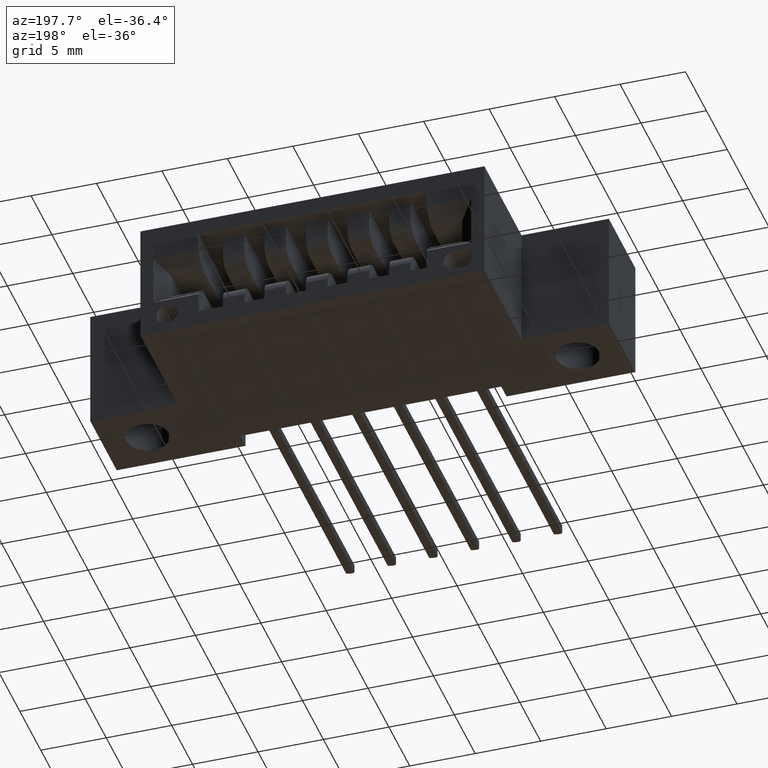
[diagram: clean part render]
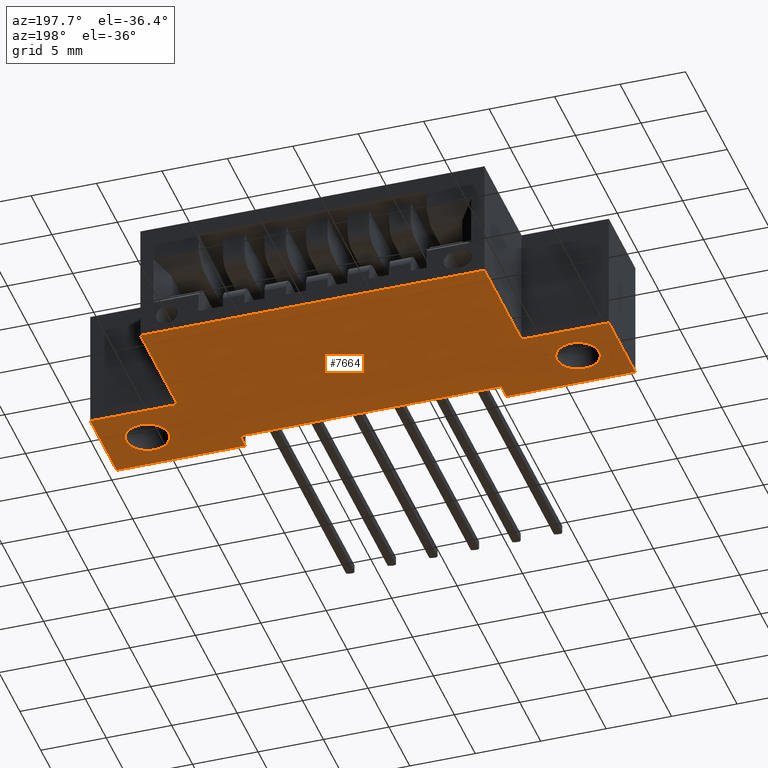
[diagram: same view with one face highlighted and labeled with its STEP entity id]
A machine part, auxiliary view. The second image highlights one B-rep face of the part: STEP entity #7664.
In plain terms, the highlighted planar face has unit normal (-0, 0, 1).
Its self-contained STEP definition (entity closure, byte-faithful):
#7 = CARTESIAN_POINT ( 'NONE',  ( 0.2625000000000000111, 0.5999999999999999778, -0.3700000000000001621 ) ) ;
#245 = CARTESIAN_POINT ( 'NONE',  ( 1.560000000000000053, 0.5999999999999999778, -0.3699999999999999956 ) ) ;
#316 = ORIENTED_EDGE ( 'NONE', *, *, #712, .T. ) ;
#342 = CARTESIAN_POINT ( 'NONE',  ( 1.297500000000000098, 0.2500000000000000000, -0.3699999999999999400 ) ) ;
#366 = CARTESIAN_POINT ( 'NONE',  ( 1.560000000000000053, 0.2500000000000000000, -0.3699999999999999956 ) ) ;
#378 = DIRECTION ( 'NONE',  ( 0.0000000000000000000, 0.0000000000000000000, 1.000000000000000000 ) ) ;
#433 = ORIENTED_EDGE ( 'NONE', *, *, #2177, .F. ) ;
#437 = EDGE_CURVE ( 'NONE', #4937, #5745, #5204, .T. ) ;
#509 = ORIENTED_EDGE ( 'NONE', *, *, #4951, .T. ) ;
#611 = EDGE_CURVE ( 'NONE', #8565, #1559, #1588, .T. ) ;
#712 = EDGE_CURVE ( 'NONE', #2293, #3486, #6329, .T. ) ;
#728 = ORIENTED_EDGE ( 'NONE', *, *, #8159, .T. ) ;
#739 = VECTOR ( 'NONE', #2907, 39.37007874015748143 ) ;
#759 = EDGE_CURVE ( 'NONE', #6420, #5329, #7561, .T. ) ;
#762 = DIRECTION ( 'NONE',  ( -0.0000000000000000000, 1.000000000000000000, -0.0000000000000000000 ) ) ;
#807 = CARTESIAN_POINT ( 'NONE',  ( 0.0000000000000000000, 0.2500000000000000000, -0.3700000000000001621 ) ) ;
#812 = DIRECTION ( 'NONE',  ( -0.0000000000000000000, -1.000000000000000000, -0.0000000000000000000 ) ) ;
#818 = AXIS2_PLACEMENT_3D ( 'NONE', #4410, #5767, #4954 ) ;
#883 = EDGE_LOOP ( 'NONE', ( #5001, #1217, #7986, #5560, #316, #433, #3138, #1783, #1292, #8466, #3577, #5345 ) ) ;
#965 = DIRECTION ( 'NONE',  ( 0.0000000000000000000, 0.0000000000000000000, 1.000000000000000000 ) ) ;
#1018 = EDGE_LOOP ( 'NONE', ( #728, #509 ) ) ;
#1217 = ORIENTED_EDGE ( 'NONE', *, *, #6530, .F. ) ;
#1270 = VECTOR ( 'NONE', #762, 39.37007874015748143 ) ;
#1292 = ORIENTED_EDGE ( 'NONE', *, *, #1578, .T. ) ;
#1354 = DIRECTION ( 'NONE',  ( 1.000000000000000000, 0.0000000000000000000, 0.0000000000000000000 ) ) ;
#1395 = CARTESIAN_POINT ( 'NONE',  ( 1.297500000000000098, 0.2500000000000000000, -0.3699999999999999400 ) ) ;
#1519 = CARTESIAN_POINT ( 'NONE',  ( 0.3874999999999999001, 0.0000000000000000000, -0.3700000000000001621 ) ) ;
#1559 = VERTEX_POINT ( 'NONE', #1395 ) ;
#1578 = EDGE_CURVE ( 'NONE', #5074, #4196, #3392, .T. ) ;
#1579 = EDGE_CURVE ( 'NONE', #6881, #8021, #2228, .T. ) ;
#1588 = LINE ( 'NONE', #366, #2827 ) ;
#1606 = CARTESIAN_POINT ( 'NONE',  ( 0.1325000000000002842, 0.1249999999999999584, -0.3700000000000001621 ) ) ;
#1613 = VERTEX_POINT ( 'NONE', #6220 ) ;
#1696 = EDGE_CURVE ( 'NONE', #5329, #6420, #6608, .T. ) ;
#1783 = ORIENTED_EDGE ( 'NONE', *, *, #3854, .T. ) ;
#1939 = DIRECTION ( 'NONE',  ( 1.000000000000000000, 0.0000000000000000000, 1.740030569212906381E-16 ) ) ;
#2049 = CARTESIAN_POINT ( 'NONE',  ( 0.3874999999999999001, 0.05000000000000000278, -0.3700000000000001621 ) ) ;
#2177 = EDGE_CURVE ( 'NONE', #2193, #3486, #3716, .T. ) ;
#2193 = VERTEX_POINT ( 'NONE', #3745 ) ;
#2228 = LINE ( 'NONE', #8032, #5499 ) ;
#2240 = CARTESIAN_POINT ( 'NONE',  ( 0.0000000000000000000, 0.0000000000000000000, -0.3700000000000001621 ) ) ;
#2275 = CARTESIAN_POINT ( 'NONE',  ( 0.0000000000000000000, 0.0000000000000000000, -0.3700000000000001621 ) ) ;
#2293 = VERTEX_POINT ( 'NONE', #5053 ) ;
#2365 = LINE ( 'NONE', #342, #7703 ) ;
#2394 = DIRECTION ( 'NONE',  ( -1.000000000000000000, 0.0000000000000000000, 0.0000000000000000000 ) ) ;
#2401 = CARTESIAN_POINT ( 'NONE',  ( 0.3874999999999999001, 0.05000000000000000278, -0.3700000000000001621 ) ) ;
#2409 = FACE_BOUND ( 'NONE', #7047, .T. ) ;
#2512 = LINE ( 'NONE', #7809, #6252 ) ;
#2640 = CARTESIAN_POINT ( 'NONE',  ( 1.172500000000000098, 0.0000000000000000000, -0.3699999999999999956 ) ) ;
#2704 = LINE ( 'NONE', #7395, #1270 ) ;
#2827 = VECTOR ( 'NONE', #5557, 39.37007874015748143 ) ;
#2869 = DIRECTION ( 'NONE',  ( -1.000000000000000000, -0.0000000000000000000, -8.755923056616228169E-17 ) ) ;
#2907 = DIRECTION ( 'NONE',  ( -0.0000000000000000000, -1.000000000000000000, -0.0000000000000000000 ) ) ;
#2938 = EDGE_CURVE ( 'NONE', #8565, #2293, #7008, .T. ) ;
#2952 = AXIS2_PLACEMENT_3D ( 'NONE', #7876, #3870, #1354 ) ;
#3138 = ORIENTED_EDGE ( 'NONE', *, *, #7509, .F. ) ;
#3187 = CARTESIAN_POINT ( 'NONE',  ( 1.297500000000000098, 0.5999999999999999778, -0.3699999999999999400 ) ) ;
#3392 = LINE ( 'NONE', #2275, #7306 ) ;
#3484 = VECTOR ( 'NONE', #3540, 39.37007874015748143 ) ;
#3486 = VERTEX_POINT ( 'NONE', #2640 ) ;
#3540 = DIRECTION ( 'NONE',  ( -0.0000000000000000000, -1.000000000000000000, -0.0000000000000000000 ) ) ;
#3577 = ORIENTED_EDGE ( 'NONE', *, *, #1579, .F. ) ;
#3598 = FACE_OUTER_BOUND ( 'NONE', #883, .T. ) ;
#3716 = LINE ( 'NONE', #5493, #6775 ) ;
#3745 = CARTESIAN_POINT ( 'NONE',  ( 1.172500000000000098, 0.05000000000000000278, -0.3699999999999999956 ) ) ;
#3778 = CARTESIAN_POINT ( 'NONE',  ( 1.491500000000000714, 0.1250000000000001943, -0.3700000000000001621 ) ) ;
#3854 = EDGE_CURVE ( 'NONE', #3929, #5074, #5715, .T. ) ;
#3870 = DIRECTION ( 'NONE',  ( 0.0000000000000000000, 0.0000000000000000000, 1.000000000000000000 ) ) ;
#3929 = VERTEX_POINT ( 'NONE', #2049 ) ;
#4196 = VERTEX_POINT ( 'NONE', #7447 ) ;
#4287 = AXIS2_PLACEMENT_3D ( 'NONE', #1606, #378, #5713 ) ;
#4410 = CARTESIAN_POINT ( 'NONE',  ( 0.0000000000000000000, 0.5999999999999999778, -0.3700000000000001621 ) ) ;
#4506 = CARTESIAN_POINT ( 'NONE',  ( 0.0000000000000000000, 0.5999999999999999778, -0.3700000000000001621 ) ) ;
#4623 = CIRCLE ( 'NONE', #2952, 0.06399999999999998745 ) ;
#4675 = CARTESIAN_POINT ( 'NONE',  ( 1.560000000000000053, 0.2500000000000001110, -0.3699999999999999956 ) ) ;
#4866 = DIRECTION ( 'NONE',  ( -1.000000000000000000, -0.0000000000000000000, -0.0000000000000000000 ) ) ;
#4879 = DIRECTION ( 'NONE',  ( -1.000000000000000000, -0.0000000000000000000, -8.755923056616228169E-17 ) ) ;
#4937 = VERTEX_POINT ( 'NONE', #3187 ) ;
#4951 = EDGE_CURVE ( 'NONE', #6139, #1613, #4623, .T. ) ;
#4954 = DIRECTION ( 'NONE',  ( 1.000000000000000000, 0.0000000000000000000, 8.755923056616229402E-17 ) ) ;
#5001 = ORIENTED_EDGE ( 'NONE', *, *, #437, .F. ) ;
#5035 = DIRECTION ( 'NONE',  ( -0.0000000000000000000, -1.000000000000000000, -0.0000000000000000000 ) ) ;
#5053 = CARTESIAN_POINT ( 'NONE',  ( 1.560000000000000053, 0.0000000000000000000, -0.3699999999999999956 ) ) ;
#5074 = VERTEX_POINT ( 'NONE', #1519 ) ;
#5203 = VECTOR ( 'NONE', #8569, 39.37007874015748143 ) ;
#5204 = LINE ( 'NONE', #8434, #5203 ) ;
#5329 = VERTEX_POINT ( 'NONE', #5844 ) ;
#5345 = ORIENTED_EDGE ( 'NONE', *, *, #5370, .T. ) ;
#5370 = EDGE_CURVE ( 'NONE', #6881, #5745, #2704, .T. ) ;
#5474 = AXIS2_PLACEMENT_3D ( 'NONE', #6603, #5919, #7170 ) ;
#5493 = CARTESIAN_POINT ( 'NONE',  ( 1.172500000000000098, 0.05000000000000000278, -0.3699999999999999956 ) ) ;
#5499 = VECTOR ( 'NONE', #4866, 39.37007874015748143 ) ;
#5557 = DIRECTION ( 'NONE',  ( -1.000000000000000000, 0.0000000000000000000, 2.601759993965964970E-16 ) ) ;
#5560 = ORIENTED_EDGE ( 'NONE', *, *, #2938, .T. ) ;
#5617 = EDGE_CURVE ( 'NONE', #8021, #4196, #7771, .T. ) ;
#5710 = CARTESIAN_POINT ( 'NONE',  ( 0.2625000000000000111, 0.2500000000000000000, -0.3700000000000001621 ) ) ;
#5713 = DIRECTION ( 'NONE',  ( 1.000000000000000000, 0.0000000000000000000, 0.0000000000000000000 ) ) ;
#5715 = LINE ( 'NONE', #2401, #8342 ) ;
#5745 = VERTEX_POINT ( 'NONE', #7 ) ;
#5767 = DIRECTION ( 'NONE',  ( -8.755923056616229402E-17, 0.0000000000000000000, 1.000000000000000000 ) ) ;
#5844 = CARTESIAN_POINT ( 'NONE',  ( 1.363499999999999268, 0.1250000000000001943, -0.3700000000000001621 ) ) ;
#5919 = DIRECTION ( 'NONE',  ( 0.0000000000000000000, 0.0000000000000000000, 1.000000000000000000 ) ) ;
#6139 = VERTEX_POINT ( 'NONE', #7918 ) ;
#6220 = CARTESIAN_POINT ( 'NONE',  ( 0.1965000000000002855, 0.1249999999999999584, -0.3700000000000001621 ) ) ;
#6252 = VECTOR ( 'NONE', #1939, 39.37007874015748143 ) ;
#6329 = LINE ( 'NONE', #2240, #7000 ) ;
#6420 = VERTEX_POINT ( 'NONE', #3778 ) ;
#6530 = EDGE_CURVE ( 'NONE', #1559, #4937, #2365, .T. ) ;
#6603 = CARTESIAN_POINT ( 'NONE',  ( 1.427499999999999991, 0.1250000000000001943, -0.3700000000000001621 ) ) ;
#6608 = CIRCLE ( 'NONE', #8395, 0.06400000000000073686 ) ;
#6775 = VECTOR ( 'NONE', #812, 39.37007874015748143 ) ;
#6881 = VERTEX_POINT ( 'NONE', #5710 ) ;
#6945 = CARTESIAN_POINT ( 'NONE',  ( 1.427499999999999991, 0.1250000000000001943, -0.3700000000000001621 ) ) ;
#7000 = VECTOR ( 'NONE', #4879, 39.37007874015748143 ) ;
#7008 = LINE ( 'NONE', #245, #739 ) ;
#7047 = EDGE_LOOP ( 'NONE', ( #8161, #7103 ) ) ;
#7058 = DIRECTION ( 'NONE',  ( -0.0000000000000000000, 1.000000000000000000, -0.0000000000000000000 ) ) ;
#7075 = CIRCLE ( 'NONE', #4287, 0.06399999999999998745 ) ;
#7103 = ORIENTED_EDGE ( 'NONE', *, *, #1696, .T. ) ;
#7140 = FACE_BOUND ( 'NONE', #1018, .T. ) ;
#7170 = DIRECTION ( 'NONE',  ( -1.000000000000000000, 0.0000000000000000000, 0.0000000000000000000 ) ) ;
#7306 = VECTOR ( 'NONE', #2869, 39.37007874015748143 ) ;
#7395 = CARTESIAN_POINT ( 'NONE',  ( 0.2625000000000000111, 0.2500000000000000000, -0.3700000000000001621 ) ) ;
#7447 = CARTESIAN_POINT ( 'NONE',  ( 0.0000000000000000000, 0.0000000000000000000, -0.3700000000000001621 ) ) ;
#7509 = EDGE_CURVE ( 'NONE', #3929, #2193, #2512, .T. ) ;
#7561 = CIRCLE ( 'NONE', #5474, 0.06400000000000073686 ) ;
#7664 = ADVANCED_FACE ( 'NONE', ( #2409, #7140, #3598 ), #7753, .F. ) ;
#7703 = VECTOR ( 'NONE', #7058, 39.37007874015748143 ) ;
#7753 = PLANE ( 'NONE',  #818 ) ;
#7771 = LINE ( 'NONE', #4506, #3484 ) ;
#7809 = CARTESIAN_POINT ( 'NONE',  ( 0.3874999999999999001, 0.05000000000000000278, -0.3700000000000001621 ) ) ;
#7876 = CARTESIAN_POINT ( 'NONE',  ( 0.1325000000000002842, 0.1249999999999999584, -0.3700000000000001621 ) ) ;
#7918 = CARTESIAN_POINT ( 'NONE',  ( 0.06850000000000031064, 0.1249999999999999584, -0.3700000000000001621 ) ) ;
#7986 = ORIENTED_EDGE ( 'NONE', *, *, #611, .F. ) ;
#8021 = VERTEX_POINT ( 'NONE', #807 ) ;
#8032 = CARTESIAN_POINT ( 'NONE',  ( 0.0000000000000000000, 0.2500000000000000000, -0.3700000000000001621 ) ) ;
#8159 = EDGE_CURVE ( 'NONE', #1613, #6139, #7075, .T. ) ;
#8161 = ORIENTED_EDGE ( 'NONE', *, *, #759, .T. ) ;
#8342 = VECTOR ( 'NONE', #5035, 39.37007874015748143 ) ;
#8395 = AXIS2_PLACEMENT_3D ( 'NONE', #6945, #965, #2394 ) ;
#8434 = CARTESIAN_POINT ( 'NONE',  ( 0.0000000000000000000, 0.5999999999999999778, -0.3700000000000001621 ) ) ;
#8466 = ORIENTED_EDGE ( 'NONE', *, *, #5617, .F. ) ;
#8565 = VERTEX_POINT ( 'NONE', #4675 ) ;
#8569 = DIRECTION ( 'NONE',  ( -1.000000000000000000, -0.0000000000000000000, -8.755923056616228169E-17 ) ) ;